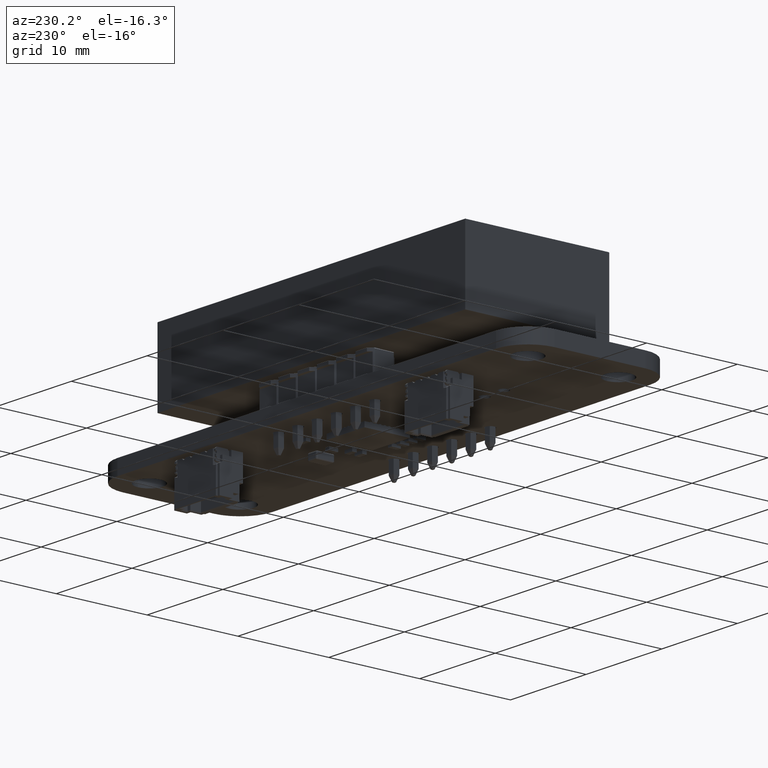
[diagram: clean part render]
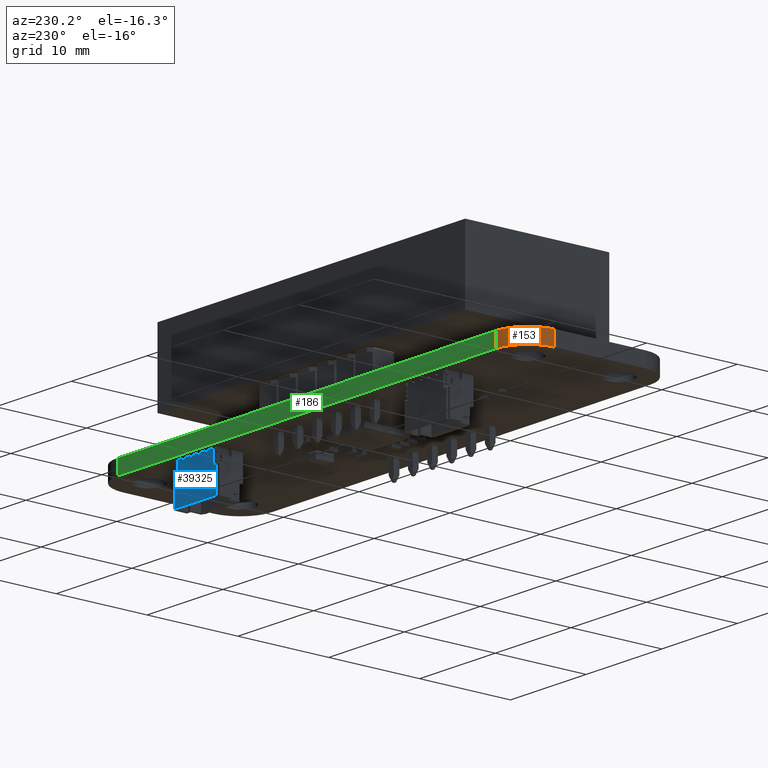
[diagram: same view with three faces highlighted in distinct colors, each labeled with its STEP entity id]
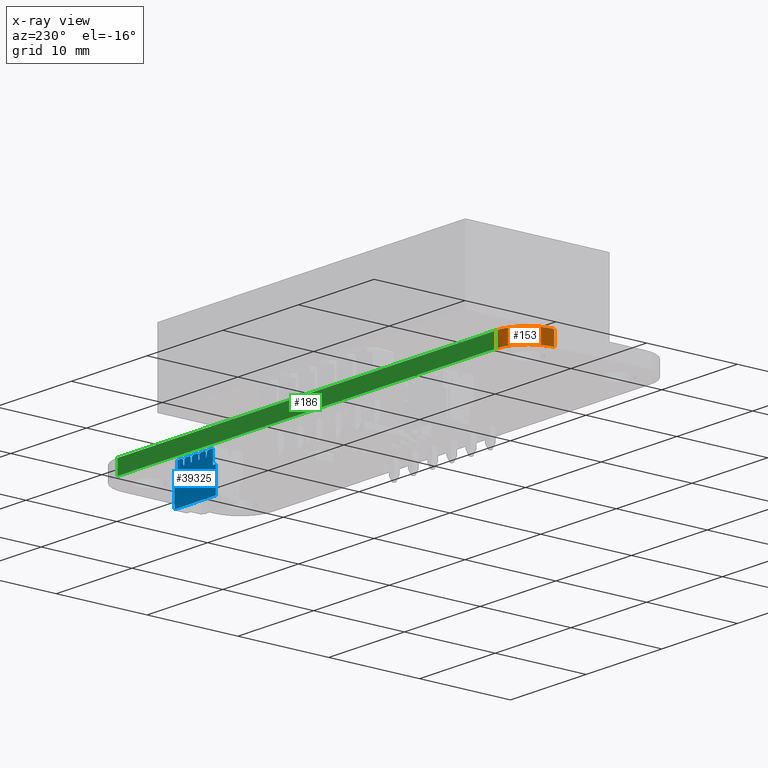
[diagram: x-ray of the same camera — body ghosted, the three highlighted faces saturated]
A machine part, auxiliary view with three faces highlighted in distinct colors.
The next image is the same camera in x-ray (body ghosted, the three faces saturated) — at least one of them is partly hidden behind the body in this view.
Their STEP definitions:

[orange] entity #153 — the highlighted cylindrical surface (partial cylindrical patch) has radius 3.4996 mm, axis along (0, 0, -1).
#128 = VERTEX_POINT('',#129);
#129 = CARTESIAN_POINT('',(2.22044604925E-16,13.5,1.59540194));
#135 = EDGE_CURVE('',#136,#128,#138,.T.);
#136 = VERTEX_POINT('',#137);
#137 = CARTESIAN_POINT('',(2.22044604925E-16,13.5,0.));
#138 = LINE('',#139,#140);
#139 = CARTESIAN_POINT('',(2.22044604925E-16,13.5,0.));
#140 = VECTOR('',#141,1.);
#141 = DIRECTION('',(0.,0.,1.));
#153 = ADVANCED_FACE('',(#154),#181,.T.);
#154 = FACE_BOUND('',#155,.T.);
#155 = EDGE_LOOP('',(#156,#157,#166,#174));
#156 = ORIENTED_EDGE('',*,*,#135,.T.);
#157 = ORIENTED_EDGE('',*,*,#158,.T.);
#158 = EDGE_CURVE('',#128,#159,#161,.T.);
#159 = VERTEX_POINT('',#160);
#160 = CARTESIAN_POINT('',(3.5,17.,1.59540194));
#161 = CIRCLE('',#162,3.499568992062);
#162 = AXIS2_PLACEMENT_3D('',#163,#164,#165);
#163 = CARTESIAN_POINT('',(3.499568965517,13.500431034483,1.59540194));
#164 = DIRECTION('',(0.,0.,-1.));
#165 = DIRECTION('',(-0.999999992415,-1.231678768832E-04,-0.));
#166 = ORIENTED_EDGE('',*,*,#167,.F.);
#167 = EDGE_CURVE('',#168,#159,#170,.T.);
#168 = VERTEX_POINT('',#169);
#169 = CARTESIAN_POINT('',(3.5,17.,0.));
#170 = LINE('',#171,#172);
#171 = CARTESIAN_POINT('',(3.5,17.,0.));
#172 = VECTOR('',#173,1.);
#173 = DIRECTION('',(0.,0.,1.));
#174 = ORIENTED_EDGE('',*,*,#175,.F.);
#175 = EDGE_CURVE('',#136,#168,#176,.T.);
#176 = CIRCLE('',#177,3.499568992062);
#177 = AXIS2_PLACEMENT_3D('',#178,#179,#180);
#178 = CARTESIAN_POINT('',(3.499568965517,13.500431034483,0.));
#179 = DIRECTION('',(0.,0.,-1.));
#180 = DIRECTION('',(-0.999999992415,-1.231678768832E-04,-0.));
#181 = CYLINDRICAL_SURFACE('',#182,3.499568992062);
#182 = AXIS2_PLACEMENT_3D('',#183,#184,#185);
#183 = CARTESIAN_POINT('',(3.499568965517,13.500431034483,0.));
#184 = DIRECTION('',(0.,0.,-1.));
#185 = DIRECTION('',(-0.999999992415,-1.231678768832E-04,-0.));

[blue] entity #39325 — the highlighted planar face has unit normal (-0, -1, -0).
#39325 = ADVANCED_FACE('',(#39326),#39584,.F.);
#39326 = FACE_BOUND('',#39327,.T.);
#39327 = EDGE_LOOP('',(#39328,#39338,#39346,#39354,#39362,#39370,#39378,
    #39386,#39394,#39402,#39410,#39418,#39426,#39434,#39442,#39450,
    #39458,#39466,#39474,#39482,#39490,#39498,#39506,#39514,#39522,
    #39530,#39538,#39546,#39554,#39562,#39570,#39578));
#39328 = ORIENTED_EDGE('',*,*,#39329,.F.);
#39329 = EDGE_CURVE('',#39330,#39332,#39334,.T.);
#39330 = VERTEX_POINT('',#39331);
#39331 = CARTESIAN_POINT('',(2.35,1.588675134595,-1.45));
#39332 = VERTEX_POINT('',#39333);
#39333 = CARTESIAN_POINT('',(2.75,1.588675134595,-1.45));
#39334 = LINE('',#39335,#39336);
#39335 = CARTESIAN_POINT('',(2.5,1.588675134595,-1.45));
#39336 = VECTOR('',#39337,1.);
#39337 = DIRECTION('',(1.,-0.,-0.));
#39338 = ORIENTED_EDGE('',*,*,#39339,.T.);
#39339 = EDGE_CURVE('',#39330,#39340,#39342,.T.);
#39340 = VERTEX_POINT('',#39341);
#39341 = CARTESIAN_POINT('',(2.35,0.1,-1.45));
#39342 = LINE('',#39343,#39344);
#39343 = CARTESIAN_POINT('',(2.35,0.1,-1.45));
#39344 = VECTOR('',#39345,1.);
#39345 = DIRECTION('',(0.,-1.,0.));
#39346 = ORIENTED_EDGE('',*,*,#39347,.T.);
#39347 = EDGE_CURVE('',#39340,#39348,#39350,.T.);
#39348 = VERTEX_POINT('',#39349);
#39349 = CARTESIAN_POINT('',(1.725,0.1,-1.45));
#39350 = LINE('',#39351,#39352);
#39351 = CARTESIAN_POINT('',(3.,0.1,-1.45));
#39352 = VECTOR('',#39353,1.);
#39353 = DIRECTION('',(-1.,-0.,-0.));
#39354 = ORIENTED_EDGE('',*,*,#39355,.F.);
#39355 = EDGE_CURVE('',#39356,#39348,#39358,.T.);
#39356 = VERTEX_POINT('',#39357);
#39357 = CARTESIAN_POINT('',(1.575,0.25,-1.45));
#39358 = LINE('',#39359,#39360);
#39359 = CARTESIAN_POINT('',(2.3625,-0.5375,-1.45));
#39360 = VECTOR('',#39361,1.);
#39361 = DIRECTION('',(0.707106781187,-0.707106781187,0.));
#39362 = ORIENTED_EDGE('',*,*,#39363,.F.);
#39363 = EDGE_CURVE('',#39364,#39356,#39366,.T.);
#39364 = VERTEX_POINT('',#39365);
#39365 = CARTESIAN_POINT('',(1.575,0.7,-1.45));
#39366 = LINE('',#39367,#39368);
#39367 = CARTESIAN_POINT('',(1.575,0.1,-1.45));
#39368 = VECTOR('',#39369,1.);
#39369 = DIRECTION('',(0.,-1.,0.));
#39370 = ORIENTED_EDGE('',*,*,#39371,.F.);
#39371 = EDGE_CURVE('',#39372,#39364,#39374,.T.);
#39372 = VERTEX_POINT('',#39373);
#39373 = CARTESIAN_POINT('',(1.425,0.7,-1.45));
#39374 = LINE('',#39375,#39376);
#39375 = CARTESIAN_POINT('',(3.,0.7,-1.45));
#39376 = VECTOR('',#39377,1.);
#39377 = DIRECTION('',(1.,0.,-0.));
#39378 = ORIENTED_EDGE('',*,*,#39379,.T.);
#39379 = EDGE_CURVE('',#39372,#39380,#39382,.T.);
#39380 = VERTEX_POINT('',#39381);
#39381 = CARTESIAN_POINT('',(1.425,0.25,-1.45));
#39382 = LINE('',#39383,#39384);
#39383 = CARTESIAN_POINT('',(1.425,0.1,-1.45));
#39384 = VECTOR('',#39385,1.);
#39385 = DIRECTION('',(0.,-1.,0.));
#39386 = ORIENTED_EDGE('',*,*,#39387,.T.);
#39387 = EDGE_CURVE('',#39380,#39388,#39390,.T.);
#39388 = VERTEX_POINT('',#39389);
#39389 = CARTESIAN_POINT('',(1.275,0.1,-1.45));
#39390 = LINE('',#39391,#39392);
#39391 = CARTESIAN_POINT('',(2.1375,0.9625,-1.45));
#39392 = VECTOR('',#39393,1.);
#39393 = DIRECTION('',(-0.707106781187,-0.707106781187,0.));
#39394 = ORIENTED_EDGE('',*,*,#39395,.T.);
#39395 = EDGE_CURVE('',#39388,#39396,#39398,.T.);
#39396 = VERTEX_POINT('',#39397);
#39397 = CARTESIAN_POINT('',(0.725,0.1,-1.45));
#39398 = LINE('',#39399,#39400);
#39399 = CARTESIAN_POINT('',(3.,0.1,-1.45));
#39400 = VECTOR('',#39401,1.);
#39401 = DIRECTION('',(-1.,-0.,-0.));
#39402 = ORIENTED_EDGE('',*,*,#39403,.F.);
#39403 = EDGE_CURVE('',#39404,#39396,#39406,.T.);
#39404 = VERTEX_POINT('',#39405);
#39405 = CARTESIAN_POINT('',(0.575,0.25,-1.45));
#39406 = LINE('',#39407,#39408);
#39407 = CARTESIAN_POINT('',(1.8625,-1.0375,-1.45));
#39408 = VECTOR('',#39409,1.);
#39409 = DIRECTION('',(0.707106781187,-0.707106781187,0.));
#39410 = ORIENTED_EDGE('',*,*,#39411,.F.);
#39411 = EDGE_CURVE('',#39412,#39404,#39414,.T.);
#39412 = VERTEX_POINT('',#39413);
#39413 = CARTESIAN_POINT('',(0.575,0.7,-1.45));
#39414 = LINE('',#39415,#39416);
#39415 = CARTESIAN_POINT('',(0.575,0.1,-1.45));
#39416 = VECTOR('',#39417,1.);
#39417 = DIRECTION('',(1.8E-16,-1.,0.));
#39418 = ORIENTED_EDGE('',*,*,#39419,.F.);
#39419 = EDGE_CURVE('',#39420,#39412,#39422,.T.);
#39420 = VERTEX_POINT('',#39421);
#39421 = CARTESIAN_POINT('',(0.425,0.7,-1.45));
#39422 = LINE('',#39423,#39424);
#39423 = CARTESIAN_POINT('',(3.,0.7,-1.45));
#39424 = VECTOR('',#39425,1.);
#39425 = DIRECTION('',(1.,0.,-0.));
#39426 = ORIENTED_EDGE('',*,*,#39427,.T.);
#39427 = EDGE_CURVE('',#39420,#39428,#39430,.T.);
#39428 = VERTEX_POINT('',#39429);
#39429 = CARTESIAN_POINT('',(0.425,0.25,-1.45));
#39430 = LINE('',#39431,#39432);
#39431 = CARTESIAN_POINT('',(0.425,0.1,-1.45));
#39432 = VECTOR('',#39433,1.);
#39433 = DIRECTION('',(9.E-17,-1.,0.));
#39434 = ORIENTED_EDGE('',*,*,#39435,.T.);
#39435 = EDGE_CURVE('',#39428,#39436,#39438,.T.);
#39436 = VERTEX_POINT('',#39437);
#39437 = CARTESIAN_POINT('',(0.275,0.1,-1.45));
#39438 = LINE('',#39439,#39440);
#39439 = CARTESIAN_POINT('',(1.6375,1.4625,-1.45));
#39440 = VECTOR('',#39441,1.);
#39441 = DIRECTION('',(-0.707106781187,-0.707106781187,0.));
#39442 = ORIENTED_EDGE('',*,*,#39443,.T.);
#39443 = EDGE_CURVE('',#39436,#39444,#39446,.T.);
#39444 = VERTEX_POINT('',#39445);
#39445 = CARTESIAN_POINT('',(-0.275,0.1,-1.45));
#39446 = LINE('',#39447,#39448);
#39447 = CARTESIAN_POINT('',(3.,0.1,-1.45));
#39448 = VECTOR('',#39449,1.);
#39449 = DIRECTION('',(-1.,-0.,-0.));
#39450 = ORIENTED_EDGE('',*,*,#39451,.F.);
#39451 = EDGE_CURVE('',#39452,#39444,#39454,.T.);
#39452 = VERTEX_POINT('',#39453);
#39453 = CARTESIAN_POINT('',(-0.425,0.25,-1.45));
#39454 = LINE('',#39455,#39456);
#39455 = CARTESIAN_POINT('',(1.3625,-1.5375,-1.45));
#39456 = VECTOR('',#39457,1.);
#39457 = DIRECTION('',(0.707106781187,-0.707106781187,0.));
#39458 = ORIENTED_EDGE('',*,*,#39459,.F.);
#39459 = EDGE_CURVE('',#39460,#39452,#39462,.T.);
#39460 = VERTEX_POINT('',#39461);
#39461 = CARTESIAN_POINT('',(-0.425,0.7,-1.45));
#39462 = LINE('',#39463,#39464);
#39463 = CARTESIAN_POINT('',(-0.425,0.1,-1.45));
#39464 = VECTOR('',#39465,1.);
#39465 = DIRECTION('',(1.8E-16,-1.,0.));
#39466 = ORIENTED_EDGE('',*,*,#39467,.F.);
#39467 = EDGE_CURVE('',#39468,#39460,#39470,.T.);
#39468 = VERTEX_POINT('',#39469);
#39469 = CARTESIAN_POINT('',(-0.575,0.7,-1.45));
#39470 = LINE('',#39471,#39472);
#39471 = CARTESIAN_POINT('',(3.,0.7,-1.45));
#39472 = VECTOR('',#39473,1.);
#39473 = DIRECTION('',(1.,0.,-0.));
#39474 = ORIENTED_EDGE('',*,*,#39475,.T.);
#39475 = EDGE_CURVE('',#39468,#39476,#39478,.T.);
#39476 = VERTEX_POINT('',#39477);
#39477 = CARTESIAN_POINT('',(-0.575,0.25,-1.45));
#39478 = LINE('',#39479,#39480);
#39479 = CARTESIAN_POINT('',(-0.575,0.1,-1.45));
#39480 = VECTOR('',#39481,1.);
#39481 = DIRECTION('',(0.,-1.,0.));
#39482 = ORIENTED_EDGE('',*,*,#39483,.T.);
#39483 = EDGE_CURVE('',#39476,#39484,#39486,.T.);
#39484 = VERTEX_POINT('',#39485);
#39485 = CARTESIAN_POINT('',(-0.725,0.1,-1.45));
#39486 = LINE('',#39487,#39488);
#39487 = CARTESIAN_POINT('',(1.1375,1.9625,-1.45));
#39488 = VECTOR('',#39489,1.);
#39489 = DIRECTION('',(-0.707106781187,-0.707106781187,0.));
#39490 = ORIENTED_EDGE('',*,*,#39491,.T.);
#39491 = EDGE_CURVE('',#39484,#39492,#39494,.T.);
#39492 = VERTEX_POINT('',#39493);
#39493 = CARTESIAN_POINT('',(-1.275,0.1,-1.45));
#39494 = LINE('',#39495,#39496);
#39495 = CARTESIAN_POINT('',(3.,0.1,-1.45));
#39496 = VECTOR('',#39497,1.);
#39497 = DIRECTION('',(-1.,-0.,-0.));
#39498 = ORIENTED_EDGE('',*,*,#39499,.F.);
#39499 = EDGE_CURVE('',#39500,#39492,#39502,.T.);
#39500 = VERTEX_POINT('',#39501);
#39501 = CARTESIAN_POINT('',(-1.425,0.25,-1.45));
#39502 = LINE('',#39503,#39504);
#39503 = CARTESIAN_POINT('',(0.8625,-2.0375,-1.45));
#39504 = VECTOR('',#39505,1.);
#39505 = DIRECTION('',(0.707106781187,-0.707106781187,0.));
#39506 = ORIENTED_EDGE('',*,*,#39507,.F.);
#39507 = EDGE_CURVE('',#39508,#39500,#39510,.T.);
#39508 = VERTEX_POINT('',#39509);
#39509 = CARTESIAN_POINT('',(-1.425,0.7,-1.45));
#39510 = LINE('',#39511,#39512);
#39511 = CARTESIAN_POINT('',(-1.425,0.1,-1.45));
#39512 = VECTOR('',#39513,1.);
#39513 = DIRECTION('',(0.,-1.,0.));
#39514 = ORIENTED_EDGE('',*,*,#39515,.F.);
#39515 = EDGE_CURVE('',#39516,#39508,#39518,.T.);
#39516 = VERTEX_POINT('',#39517);
#39517 = CARTESIAN_POINT('',(-1.575,0.7,-1.45));
#39518 = LINE('',#39519,#39520);
#39519 = CARTESIAN_POINT('',(3.,0.7,-1.45));
#39520 = VECTOR('',#39521,1.);
#39521 = DIRECTION('',(1.,0.,-0.));
#39522 = ORIENTED_EDGE('',*,*,#39523,.T.);
#39523 = EDGE_CURVE('',#39516,#39524,#39526,.T.);
#39524 = VERTEX_POINT('',#39525);
#39525 = CARTESIAN_POINT('',(-1.575,0.25,-1.45));
#39526 = LINE('',#39527,#39528);
#39527 = CARTESIAN_POINT('',(-1.575,0.1,-1.45));
#39528 = VECTOR('',#39529,1.);
#39529 = DIRECTION('',(0.,-1.,0.));
#39530 = ORIENTED_EDGE('',*,*,#39531,.T.);
#39531 = EDGE_CURVE('',#39524,#39532,#39534,.T.);
#39532 = VERTEX_POINT('',#39533);
#39533 = CARTESIAN_POINT('',(-1.725,0.1,-1.45));
#39534 = LINE('',#39535,#39536);
#39535 = CARTESIAN_POINT('',(0.6375,2.4625,-1.45));
#39536 = VECTOR('',#39537,1.);
#39537 = DIRECTION('',(-0.707106781187,-0.707106781187,0.));
#39538 = ORIENTED_EDGE('',*,*,#39539,.T.);
#39539 = EDGE_CURVE('',#39532,#39540,#39542,.T.);
#39540 = VERTEX_POINT('',#39541);
#39541 = CARTESIAN_POINT('',(-2.35,0.1,-1.45));
#39542 = LINE('',#39543,#39544);
#39543 = CARTESIAN_POINT('',(3.,0.1,-1.45));
#39544 = VECTOR('',#39545,1.);
#39545 = DIRECTION('',(-1.,-0.,-0.));
#39546 = ORIENTED_EDGE('',*,*,#39547,.T.);
#39547 = EDGE_CURVE('',#39540,#39548,#39550,.T.);
#39548 = VERTEX_POINT('',#39549);
#39549 = CARTESIAN_POINT('',(-2.35,1.588675134595,-1.45));
#39550 = LINE('',#39551,#39552);
#39551 = CARTESIAN_POINT('',(-2.35,1.588675134595,-1.45));
#39552 = VECTOR('',#39553,1.);
#39553 = DIRECTION('',(0.,1.,0.));
#39554 = ORIENTED_EDGE('',*,*,#39555,.T.);
#39555 = EDGE_CURVE('',#39548,#39556,#39558,.T.);
#39556 = VERTEX_POINT('',#39557);
#39557 = CARTESIAN_POINT('',(-2.75,1.588675134595,-1.45));
#39558 = LINE('',#39559,#39560);
#39559 = CARTESIAN_POINT('',(-2.5,1.588675134595,-1.45));
#39560 = VECTOR('',#39561,1.);
#39561 = DIRECTION('',(-1.,-0.,-0.));
#39562 = ORIENTED_EDGE('',*,*,#39563,.T.);
#39563 = EDGE_CURVE('',#39556,#39564,#39566,.T.);
#39564 = VERTEX_POINT('',#39565);
#39565 = CARTESIAN_POINT('',(-2.75,4.35,-1.45));
#39566 = LINE('',#39567,#39568);
#39567 = CARTESIAN_POINT('',(-2.75,0.,-1.45));
#39568 = VECTOR('',#39569,1.);
#39569 = DIRECTION('',(0.,1.,0.));
#39570 = ORIENTED_EDGE('',*,*,#39571,.F.);
#39571 = EDGE_CURVE('',#39572,#39564,#39574,.T.);
#39572 = VERTEX_POINT('',#39573);
#39573 = CARTESIAN_POINT('',(2.75,4.35,-1.45));
#39574 = LINE('',#39575,#39576);
#39575 = CARTESIAN_POINT('',(3.,4.35,-1.45));
#39576 = VECTOR('',#39577,1.);
#39577 = DIRECTION('',(-1.,-0.,-0.));
#39578 = ORIENTED_EDGE('',*,*,#39579,.F.);
#39579 = EDGE_CURVE('',#39332,#39572,#39580,.T.);
#39580 = LINE('',#39581,#39582);
#39581 = CARTESIAN_POINT('',(2.75,0.,-1.45));
#39582 = VECTOR('',#39583,1.);
#39583 = DIRECTION('',(0.,1.,0.));
#39584 = PLANE('',#39585);
#39585 = AXIS2_PLACEMENT_3D('',#39586,#39587,#39588);
#39586 = CARTESIAN_POINT('',(3.,0.1,-1.45));
#39587 = DIRECTION('',(0.,0.,1.));
#39588 = DIRECTION('',(1.,0.,-0.));

[green] entity #186 — the highlighted planar face has unit normal (0, 1, 0).
#159 = VERTEX_POINT('',#160);
#160 = CARTESIAN_POINT('',(3.5,17.,1.59540194));
#167 = EDGE_CURVE('',#168,#159,#170,.T.);
#168 = VERTEX_POINT('',#169);
#169 = CARTESIAN_POINT('',(3.5,17.,0.));
#170 = LINE('',#171,#172);
#171 = CARTESIAN_POINT('',(3.5,17.,0.));
#172 = VECTOR('',#173,1.);
#173 = DIRECTION('',(0.,0.,1.));
#186 = ADVANCED_FACE('',(#187),#212,.T.);
#187 = FACE_BOUND('',#188,.T.);
#188 = EDGE_LOOP('',(#189,#190,#198,#206));
#189 = ORIENTED_EDGE('',*,*,#167,.T.);
#190 = ORIENTED_EDGE('',*,*,#191,.T.);
#191 = EDGE_CURVE('',#159,#192,#194,.T.);
#192 = VERTEX_POINT('',#193);
#193 = CARTESIAN_POINT('',(53.5,17.,1.59540194));
#194 = LINE('',#195,#196);
#195 = CARTESIAN_POINT('',(3.5,17.,1.59540194));
#196 = VECTOR('',#197,1.);
#197 = DIRECTION('',(1.,0.,0.));
#198 = ORIENTED_EDGE('',*,*,#199,.F.);
#199 = EDGE_CURVE('',#200,#192,#202,.T.);
#200 = VERTEX_POINT('',#201);
#201 = CARTESIAN_POINT('',(53.5,17.,0.));
#202 = LINE('',#203,#204);
#203 = CARTESIAN_POINT('',(53.5,17.,0.));
#204 = VECTOR('',#205,1.);
#205 = DIRECTION('',(0.,0.,1.));
#206 = ORIENTED_EDGE('',*,*,#207,.F.);
#207 = EDGE_CURVE('',#168,#200,#208,.T.);
#208 = LINE('',#209,#210);
#209 = CARTESIAN_POINT('',(3.5,17.,0.));
#210 = VECTOR('',#211,1.);
#211 = DIRECTION('',(1.,0.,0.));
#212 = PLANE('',#213);
#213 = AXIS2_PLACEMENT_3D('',#214,#215,#216);
#214 = CARTESIAN_POINT('',(3.5,17.,0.));
#215 = DIRECTION('',(0.,1.,0.));
#216 = DIRECTION('',(1.,0.,0.));